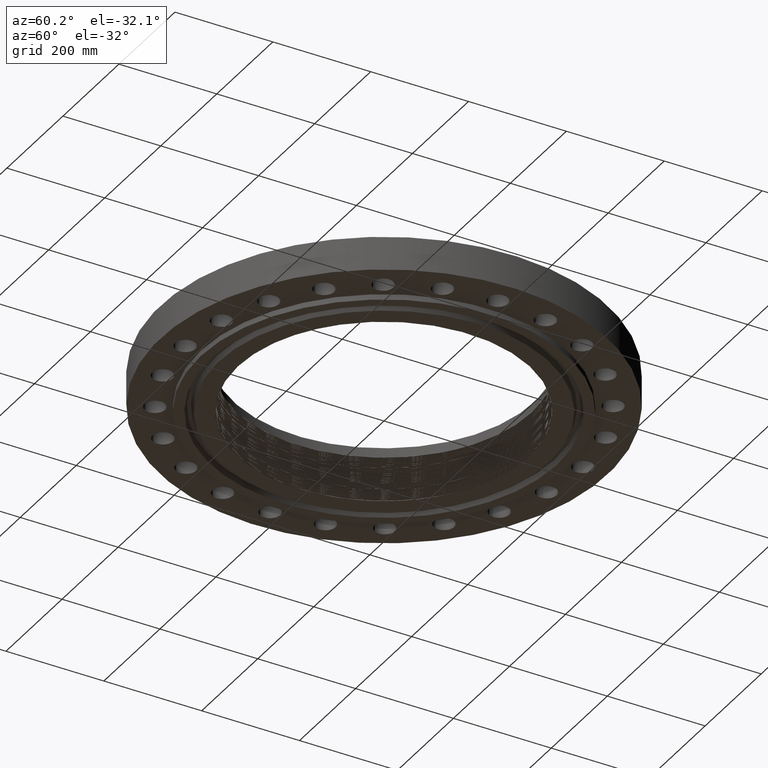
[diagram: clean part render]
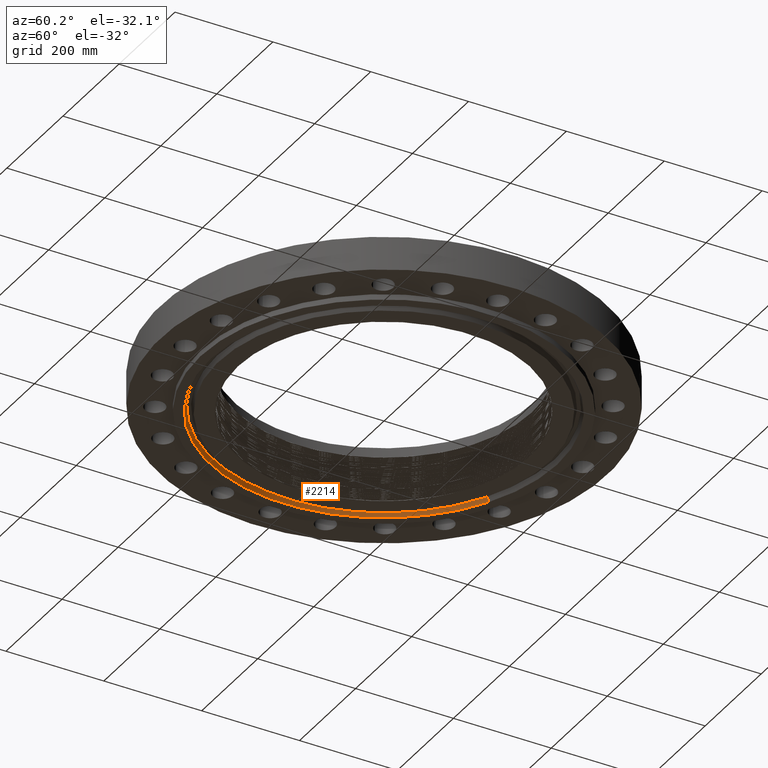
[diagram: same view with one face highlighted and labeled with its STEP entity id]
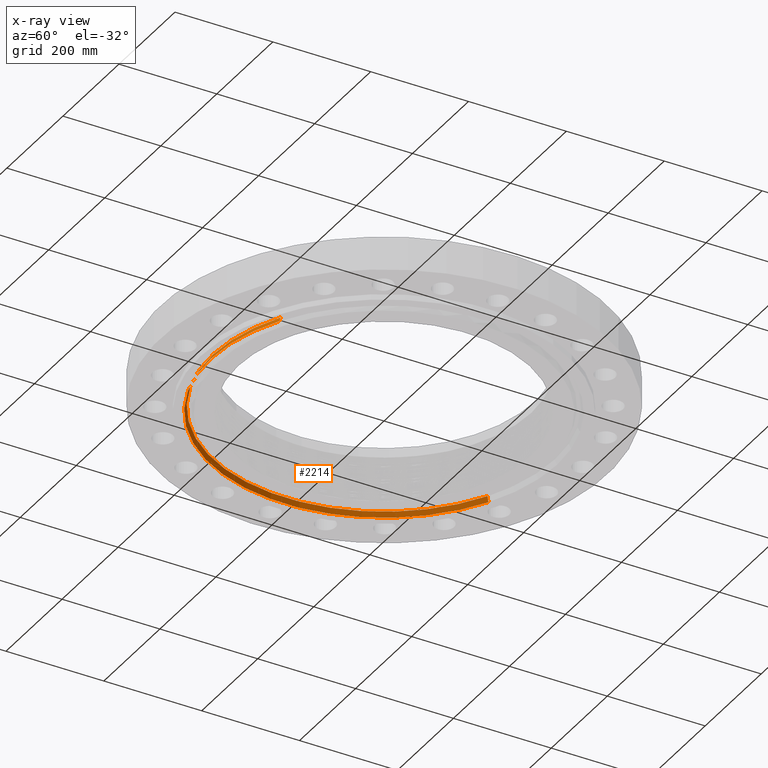
[diagram: x-ray of the same camera — body ghosted, the highlighted face saturated]
A machine part, auxiliary view. The second image highlights one B-rep face of the part: STEP entity #2214.
The next image is the same camera in x-ray: the body ghosted, the highlighted face saturated — about 0% of this face is hidden behind the body in this view.
In plain terms, the highlighted conical surface has half-angle 23 deg.
Its self-contained STEP definition (entity closure, byte-faithful):
#415=AXIS2_PLACEMENT_3D('Circle Axis2P3D',#413,#414,$) ;
#2160=AXIS2_PLACEMENT_3D('Circle Axis2P3D',#2158,#2159,$) ;
#2196=AXIS2_PLACEMENT_3D('Cone Axis2P3D',#2193,#2194,#2195) ;
#413=CARTESIAN_POINT('Axis2P3D Location',(-2.79741234551E-015,-6.71378962923E-015,-0.437500000002)) ;
#417=CARTESIAN_POINT('Vertex',(6.689496454,-12.2450411235,-0.437500000002)) ;
#419=CARTESIAN_POINT('Vertex',(-6.689496454,12.2450411235,-0.437500000002)) ;
#2158=CARTESIAN_POINT('Axis2P3D Location',(0.,0.,-0.0380793044696)) ;
#2162=CARTESIAN_POINT('Vertex',(-6.60821271786,12.0962522425,-0.0380793044696)) ;
#2164=CARTESIAN_POINT('Vertex',(6.60821271786,-12.0962522425,-0.0380793044696)) ;
#2193=CARTESIAN_POINT('Axis2P3D Location',(0.,0.,-0.0380793044696)) ;
#2198=CARTESIAN_POINT('Line Origine',(-6.64885458593,12.170646683,-0.237789652236)) ;
#2203=CARTESIAN_POINT('Line Origine',(6.64885458593,-12.170646683,-0.237789652236)) ;
#414=DIRECTION('Axis2P3D Direction',(0.,0.,-0.0393700787402)) ;
#2159=DIRECTION('Axis2P3D Direction',(0.,0.,0.0393700787402)) ;
#2194=DIRECTION('Axis2P3D Direction',(-0.,-0.,-0.0393700787402)) ;
#2195=DIRECTION('Axis2P3D XDirection',(-0.0188750212049,0.0345504945626,0.)) ;
#2199=DIRECTION('Vector Direction',(-0.00737505833565,0.0134999537303,-0.0362403485611)) ;
#2204=DIRECTION('Vector Direction',(0.00737505833565,-0.0134999537303,-0.0362403485611)) ;
#2200=VECTOR('Line Direction',#2199,0.0393700787402) ;
#2205=VECTOR('Line Direction',#2204,0.0393700787402) ;
#2209=ORIENTED_EDGE('',*,*,#421,.T.) ;
#2210=ORIENTED_EDGE('',*,*,#2202,.T.) ;
#2211=ORIENTED_EDGE('',*,*,#2166,.T.) ;
#2212=ORIENTED_EDGE('',*,*,#2207,.F.) ;
#2214=ADVANCED_FACE('PartBody',(#2213),#2197,.F.) ;
#416=CIRCLE('generated circle',#415,13.9531500001) ;
#2161=CIRCLE('generated circle',#2160,13.7836059737) ;
#2197=CONICAL_SURFACE('Cone',#2196,13.7836059737,0.401425727959) ;
#421=EDGE_CURVE('',#418,#420,#416,.T.) ;
#2166=EDGE_CURVE('',#2163,#2165,#2161,.T.) ;
#2202=EDGE_CURVE('',#420,#2163,#2201,.F.) ;
#2207=EDGE_CURVE('',#418,#2165,#2206,.F.) ;
#2208=EDGE_LOOP('',(#2209,#2210,#2211,#2212)) ;
#2213=FACE_OUTER_BOUND('',#2208,.T.) ;
#2201=LINE('Line',#2198,#2200) ;
#2206=LINE('Line',#2203,#2205) ;
#418=VERTEX_POINT('',#417) ;
#420=VERTEX_POINT('',#419) ;
#2163=VERTEX_POINT('',#2162) ;
#2165=VERTEX_POINT('',#2164) ;